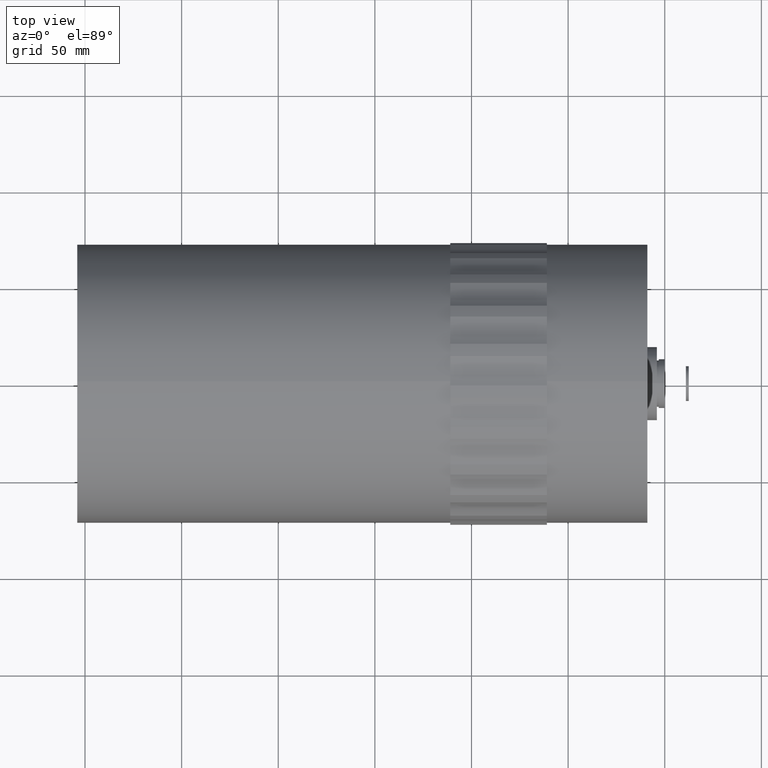
[diagram: clean part render]
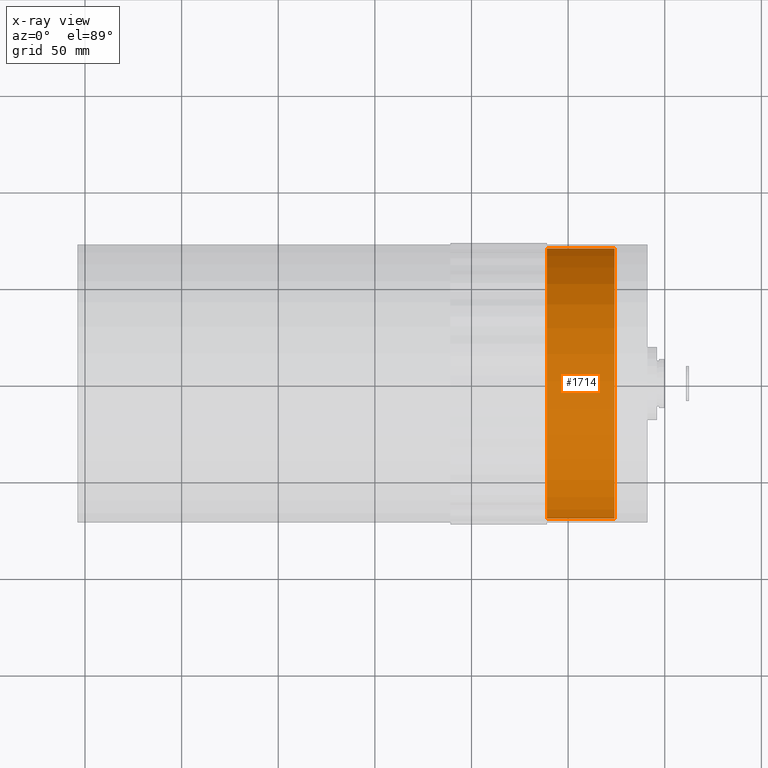
[diagram: x-ray — body ghosted, one internal face saturated and labeled with its STEP entity id]
A machine part, top view, then the same camera in x-ray: the body is ghosted and one INTERNAL B-rep face — a face not visible from any outside direction — is saturated and labeled: STEP entity #1714.
In plain terms, the highlighted cylindrical surface (bore or boss wall) has radius 70 mm, axis along (-1, -0, -0).
Its self-contained STEP definition (entity closure, byte-faithful):
#68 = DIRECTION ( 'NONE',  ( 0.000000000000000000, 0.000000000000000000, 1.000000000000000000 ) ) ;
#105 = CARTESIAN_POINT ( 'NONE',  ( -42.16727297755304704, 0.000000000000000000, 0.000000000000000000 ) ) ;
#109 = EDGE_LOOP ( 'NONE', ( #1179 ) ) ;
#287 = CARTESIAN_POINT ( 'NONE',  ( 73.99891570351354630, 0.000000000000000000, 69.99999999999998579 ) ) ;
#418 = CARTESIAN_POINT ( 'NONE',  ( 73.99891570351354630, 0.000000000000000000, 0.000000000000000000 ) ) ;
#541 = FACE_OUTER_BOUND ( 'NONE', #1109, .T. ) ;
#595 = ORIENTED_EDGE ( 'NONE', *, *, #1177, .T. ) ;
#688 = VERTEX_POINT ( 'NONE', #2432 ) ;
#811 = FACE_OUTER_BOUND ( 'NONE', #109, .T. ) ;
#984 = DIRECTION ( 'NONE',  ( -1.000000000000000000, -0.000000000000000000, -0.000000000000000000 ) ) ;
#1109 = EDGE_LOOP ( 'NONE', ( #595 ) ) ;
#1177 = EDGE_CURVE ( 'NONE', #688, #688, #2693, .T. ) ;
#1179 = ORIENTED_EDGE ( 'NONE', *, *, #2247, .F. ) ;
#1183 = CARTESIAN_POINT ( 'NONE',  ( 38.99891570351354630, 0.000000000000000000, 0.000000000000000000 ) ) ;
#1195 = VERTEX_POINT ( 'NONE', #287 ) ;
#1239 = DIRECTION ( 'NONE',  ( 0.000000000000000000, 0.000000000000000000, 1.000000000000000000 ) ) ;
#1256 = AXIS2_PLACEMENT_3D ( 'NONE', #105, #984, #1239 ) ;
#1302 = DIRECTION ( 'NONE',  ( 0.000000000000000000, 0.000000000000000000, 1.000000000000000000 ) ) ;
#1410 = DIRECTION ( 'NONE',  ( -1.000000000000000000, -0.000000000000000000, -0.000000000000000000 ) ) ;
#1714 = ADVANCED_FACE ( 'NONE', ( #811, #541 ), #2743, .F. ) ;
#2247 = EDGE_CURVE ( 'NONE', #1195, #1195, #2345, .T. ) ;
#2345 = CIRCLE ( 'NONE', #2767, 69.99999999999998579 ) ;
#2432 = CARTESIAN_POINT ( 'NONE',  ( 38.99891570351354630, 0.000000000000000000, 69.99999999999998579 ) ) ;
#2693 = CIRCLE ( 'NONE', #2740, 69.99999999999998579 ) ;
#2740 = AXIS2_PLACEMENT_3D ( 'NONE', #1183, #1410, #68 ) ;
#2743 = CYLINDRICAL_SURFACE ( 'NONE', #1256, 69.99999999999998579 ) ;
#2767 = AXIS2_PLACEMENT_3D ( 'NONE', #418, #2831, #1302 ) ;
#2831 = DIRECTION ( 'NONE',  ( -1.000000000000000000, -0.000000000000000000, -0.000000000000000000 ) ) ;